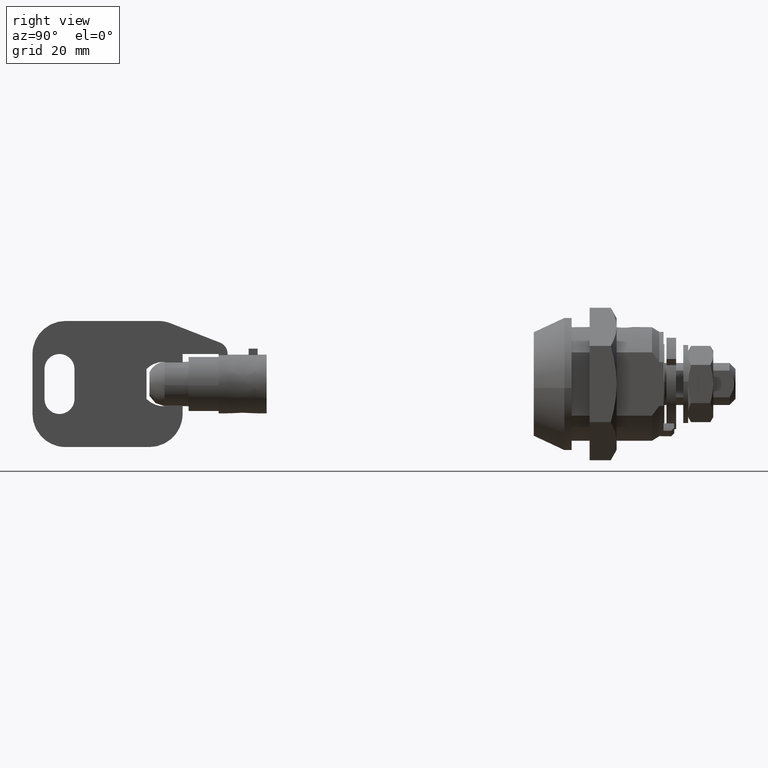
[diagram: clean part render]
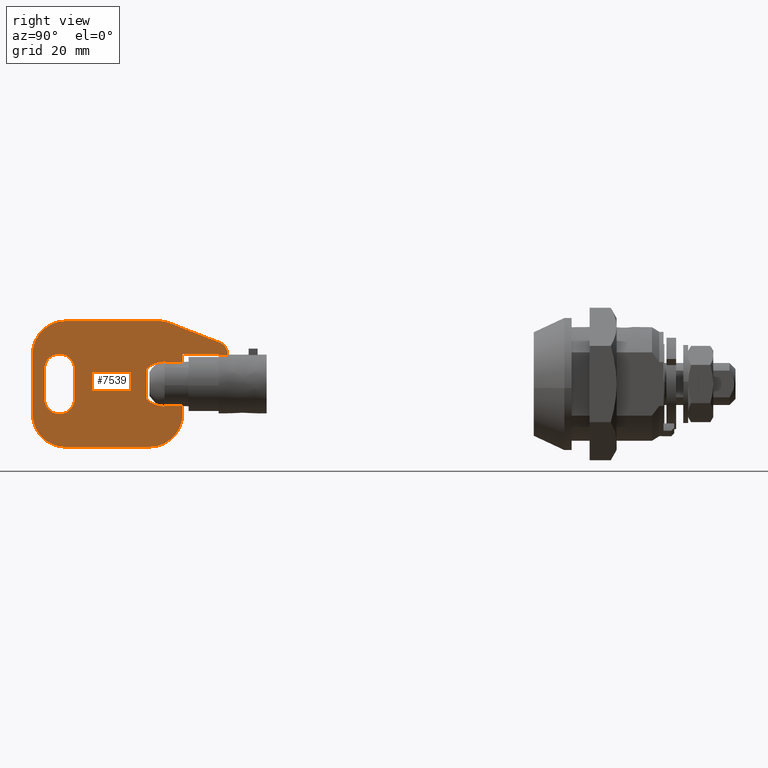
[diagram: same view with one face highlighted and labeled with its STEP entity id]
A machine part, right view. The second image highlights one B-rep face of the part: STEP entity #7539.
In plain terms, the highlighted face is a freeform B-spline surface patch.
Its self-contained STEP definition (entity closure, byte-faithful):
#5707=CARTESIAN_POINT('',(-61.487812432673103,-0.900000000000000,3.588871688985170));
#5708=VERTEX_POINT('',#5707);
#5783=CARTESIAN_POINT('',(-61.487812432673103,-0.900000000000000,-3.588871688985170));
#5784=VERTEX_POINT('',#5783);
#5798=CARTESIAN_POINT('',(-58.490193000000012,-0.900000000000000,-3.588871688985170));
#5799=VERTEX_POINT('',#5798);
#5800=CARTESIAN_POINT('',(-61.487812432673103,-0.900000000000000,-3.588871688985170));
#5801=CARTESIAN_POINT('',(-58.490193000000012,-0.900000000000000,-3.588871688985170));
#5802=QUASI_UNIFORM_CURVE('',1,(#5800,#5801),.UNSPECIFIED.,.F.,.U.);
#5803=EDGE_CURVE('',#5784,#5799,#5802,.T.);
#5866=CARTESIAN_POINT('',(-58.490193000000012,-0.900000000000000,3.588871688985170));
#5867=VERTEX_POINT('',#5866);
#5881=CARTESIAN_POINT('',(-58.490193000000012,-0.900000000000000,3.588871688985170));
#5882=CARTESIAN_POINT('',(-61.487812432673103,-0.900000000000000,3.588871688985170));
#5883=QUASI_UNIFORM_CURVE('',1,(#5881,#5882),.UNSPECIFIED.,.F.,.U.);
#5884=EDGE_CURVE('',#5867,#5708,#5883,.T.);
#6048=CARTESIAN_POINT('',(-50.990193000000012,-0.900000000000000,4.816637831516920));
#6049=VERTEX_POINT('',#6048);
#6063=CARTESIAN_POINT('',(-52.490192999999998,-0.900000000000000,4.816637831516920));
#6064=VERTEX_POINT('',#6063);
#6065=CARTESIAN_POINT('',(-50.990193000000012,-0.900000000000000,4.816637831516920));
#6066=CARTESIAN_POINT('',(-52.490192999999998,-0.900000000000000,4.816637831516920));
#6067=QUASI_UNIFORM_CURVE('',1,(#6065,#6066),.UNSPECIFIED.,.F.,.U.);
#6068=EDGE_CURVE('',#6049,#6064,#6067,.T.);
#6291=CARTESIAN_POINT('',(-61.490199608887401,-0.900000000000000,-3.588702282998970));
#6292=VERTEX_POINT('',#6291);
#6306=CARTESIAN_POINT('',(-61.490199608887423,-0.900000000000000,-3.588702282999030));
#6307=CARTESIAN_POINT('',(-61.489403980217247,-0.900000000000000,-3.588759073560181));
#6308=CARTESIAN_POINT('',(-61.488608254140843,-0.900000000000000,-3.588815540332797));
#6309=CARTESIAN_POINT('',(-61.487812432673103,-0.900000000000000,-3.588871688985170));
#6310=B_SPLINE_CURVE_WITH_KNOTS('',3,(#6306,#6307,#6308,#6309),.UNSPECIFIED.,.F.,.U.,(4,4),(0.0,0.000217530826525),.UNSPECIFIED.);
#6311=EDGE_CURVE('',#6292,#5784,#6310,.T.);
#6316=CARTESIAN_POINT('',(-61.490192999999891,-0.900000000000000,3.588702754722065));
#6317=VERTEX_POINT('',#6316);
#6318=CARTESIAN_POINT('',(-61.487812432673103,-0.900000000000000,3.588871688985170));
#6319=CARTESIAN_POINT('',(-61.488605935360383,-0.900000000000000,3.588815710378920));
#6320=CARTESIAN_POINT('',(-61.489399457490940,-0.900000000000000,3.588759394561064));
#6321=CARTESIAN_POINT('',(-61.490192999999891,-0.900000000000000,3.588702754722090));
#6322=B_SPLINE_CURVE_WITH_KNOTS('',3,(#6318,#6319,#6320,#6321),.UNSPECIFIED.,.F.,.U.,(4,4),(0.999783444907075,1.0),.UNSPECIFIED.);
#6323=EDGE_CURVE('',#5708,#6317,#6322,.T.);
#6575=CARTESIAN_POINT('',(-81.490193000000005,-0.900000000000012,-2.500000000000000));
#6576=VERTEX_POINT('',#6575);
#6577=CARTESIAN_POINT('',(-76.490193000000005,-0.900000000000012,-2.500000000000000));
#6578=VERTEX_POINT('',#6577);
#6579=CARTESIAN_POINT('',(-81.490193000000005,-0.900000000000012,-2.500000000000000));
#6580=CARTESIAN_POINT('',(-81.490193000000005,-0.900000000000012,-5.000000000000001));
#6581=CARTESIAN_POINT('',(-78.990193000000005,-0.900000000000012,-5.0));
#6582=CARTESIAN_POINT('',(-76.490192999999991,-0.900000000000012,-5.000000000000001));
#6583=CARTESIAN_POINT('',(-76.490193000000005,-0.900000000000012,-2.500000000000000));
#6591=(BOUNDED_CURVE()B_SPLINE_CURVE(2,(#6579,#6580,#6581,#6582,#6583),.UNSPECIFIED.,.F.,.U.)B_SPLINE_CURVE_WITH_KNOTS((3,2,3),(0.0,0.500000000000000,1.0),.UNSPECIFIED.)CURVE()GEOMETRIC_REPRESENTATION_ITEM()RATIONAL_B_SPLINE_CURVE((1.0,0.707106781186548,1.0,0.707106781186548,1.0))REPRESENTATION_ITEM(''));
#6592=EDGE_CURVE('',#6576,#6578,#6591,.T.);
#6631=CARTESIAN_POINT('',(-76.490193000000005,-0.900000000000012,2.500000000000000));
#6632=VERTEX_POINT('',#6631);
#6633=CARTESIAN_POINT('',(-76.490193000000005,-0.900000000000012,2.500000000000000));
#6634=CARTESIAN_POINT('',(-76.490193000000005,-0.900000000000012,-2.500000000000000));
#6635=QUASI_UNIFORM_CURVE('',1,(#6633,#6634),.UNSPECIFIED.,.F.,.U.);
#6636=EDGE_CURVE('',#6632,#6578,#6635,.T.);
#6672=CARTESIAN_POINT('',(-81.490193000000005,-0.900000000000012,2.500000000000000));
#6673=VERTEX_POINT('',#6672);
#6674=CARTESIAN_POINT('',(-76.490193000000005,-0.900000000000012,2.500000000000000));
#6675=CARTESIAN_POINT('',(-76.490192999999991,-0.900000000000012,5.000000000000001));
#6676=CARTESIAN_POINT('',(-78.990193000000005,-0.900000000000012,5.0));
#6677=CARTESIAN_POINT('',(-81.490193000000005,-0.900000000000012,5.000000000000001));
#6678=CARTESIAN_POINT('',(-81.490193000000005,-0.900000000000012,2.500000000000000));
#6686=(BOUNDED_CURVE()B_SPLINE_CURVE(2,(#6674,#6675,#6676,#6677,#6678),.UNSPECIFIED.,.F.,.U.)B_SPLINE_CURVE_WITH_KNOTS((3,2,3),(0.0,0.500000000000000,1.0),.UNSPECIFIED.)CURVE()GEOMETRIC_REPRESENTATION_ITEM()RATIONAL_B_SPLINE_CURVE((1.0,0.707106781186548,1.0,0.707106781186548,1.0))REPRESENTATION_ITEM(''));
#6687=EDGE_CURVE('',#6632,#6673,#6686,.T.);
#6720=CARTESIAN_POINT('',(-81.490193000000005,-0.900000000000012,-2.500000000000000));
#6721=CARTESIAN_POINT('',(-81.490193000000005,-0.900000000000012,2.500000000000000));
#6722=QUASI_UNIFORM_CURVE('',1,(#6720,#6721),.UNSPECIFIED.,.F.,.U.);
#6723=EDGE_CURVE('',#6576,#6673,#6722,.T.);
#6766=CARTESIAN_POINT('',(-62.526610622687897,-0.900000000000000,10.500000000000000));
#6767=VERTEX_POINT('',#6766);
#6773=CARTESIAN_POINT('',(-60.526312026143103,-0.900000000000000,10.123358812796660));
#6774=VERTEX_POINT('',#6773);
#6775=CARTESIAN_POINT('',(-60.526312026143110,-0.900000000000012,10.123358812796640));
#6776=CARTESIAN_POINT('',(-61.491001972461007,-0.900000000000012,10.500000000000000));
#6777=CARTESIAN_POINT('',(-62.526610622687897,-0.900000000000012,10.500000000000000));
#6785=(BOUNDED_CURVE()B_SPLINE_CURVE(2,(#6775,#6776,#6777),.UNSPECIFIED.,.F.,.U.)CURVE()GEOMETRIC_REPRESENTATION_ITEM()QUASI_UNIFORM_CURVE()RATIONAL_B_SPLINE_CURVE((1.0,0.982730833988851,1.0))REPRESENTATION_ITEM(''));
#6786=EDGE_CURVE('',#6774,#6767,#6785,.T.);
#6827=CARTESIAN_POINT('',(-52.262811692165499,-0.900000000000000,6.897063578639590));
#6828=VERTEX_POINT('',#6827);
#6834=CARTESIAN_POINT('',(-50.990193000000012,-0.900000000000000,5.034024010349899));
#6835=VERTEX_POINT('',#6834);
#6836=CARTESIAN_POINT('',(-50.990192999999998,-0.900000000000012,5.034024010349899));
#6837=CARTESIAN_POINT('',(-50.990192999999991,-0.900000000000012,6.400198635759287));
#6838=CARTESIAN_POINT('',(-52.262811692165513,-0.900000000000012,6.897063578639575));
#6846=(BOUNDED_CURVE()B_SPLINE_CURVE(2,(#6836,#6837,#6838),.UNSPECIFIED.,.F.,.U.)CURVE()GEOMETRIC_REPRESENTATION_ITEM()QUASI_UNIFORM_CURVE()RATIONAL_B_SPLINE_CURVE((1.0,0.825739260879985,1.0))REPRESENTATION_ITEM(''));
#6847=EDGE_CURVE('',#6835,#6828,#6846,.T.);
#6862=CARTESIAN_POINT('',(-58.490193000000012,-0.900000000000012,5.0));
#6863=VERTEX_POINT('',#6862);
#6864=CARTESIAN_POINT('',(-52.490192999999998,-0.900000000000012,5.0));
#6865=VERTEX_POINT('',#6864);
#6866=CARTESIAN_POINT('',(-58.490193000000012,-0.900000000000012,5.0));
#6867=CARTESIAN_POINT('',(-52.490192999999998,-0.900000000000012,5.0));
#6868=QUASI_UNIFORM_CURVE('',1,(#6866,#6867),.UNSPECIFIED.,.F.,.U.);
#6869=EDGE_CURVE('',#6863,#6865,#6868,.T.);
#6898=CARTESIAN_POINT('',(-64.490193000000005,-0.900000000000012,-2.500520151848770));
#6899=VERTEX_POINT('',#6898);
#6900=CARTESIAN_POINT('',(-64.490193000000005,-0.900000000000012,2.499520151848455));
#6901=VERTEX_POINT('',#6900);
#6902=CARTESIAN_POINT('',(-64.490193000000005,-0.900000000000012,-2.500520151848770));
#6903=CARTESIAN_POINT('',(-64.490193000000005,-0.900000000000012,2.499520151848455));
#6904=QUASI_UNIFORM_CURVE('',1,(#6902,#6903),.UNSPECIFIED.,.F.,.U.);
#6905=EDGE_CURVE('',#6899,#6901,#6904,.T.);
#6943=CARTESIAN_POINT('',(-61.490199608887401,-0.900000000000012,-3.700514335641915));
#6944=VERTEX_POINT('',#6943);
#6945=CARTESIAN_POINT('',(-64.490193000000005,-0.900000000000012,-2.500520151848772));
#6946=CARTESIAN_POINT('',(-63.255093754734816,-0.900000000000012,-3.762762620372036));
#6947=CARTESIAN_POINT('',(-61.490199608887401,-0.900000000000012,-3.700514335641909));
#6955=(BOUNDED_CURVE()B_SPLINE_CURVE(2,(#6945,#6946,#6947),.UNSPECIFIED.,.F.,.U.)CURVE()GEOMETRIC_REPRESENTATION_ITEM()QUASI_UNIFORM_CURVE()RATIONAL_B_SPLINE_CURVE((1.0,0.914809181026153,1.0))REPRESENTATION_ITEM(''));
#6956=EDGE_CURVE('',#6899,#6944,#6955,.T.);
#6996=CARTESIAN_POINT('',(-63.990192999999998,-0.900000000000012,-10.500000000000201));
#6997=VERTEX_POINT('',#6996);
#6998=CARTESIAN_POINT('',(-58.490193000000012,-0.900000000000012,-5.0));
#6999=VERTEX_POINT('',#6998);
#7000=CARTESIAN_POINT('',(-63.990192999999998,-0.900000000000012,-10.500000000000000));
#7001=CARTESIAN_POINT('',(-58.490193000000005,-0.900000000000012,-10.499999999999998));
#7002=CARTESIAN_POINT('',(-58.490193000000012,-0.900000000000012,-5.0));
#7010=(BOUNDED_CURVE()B_SPLINE_CURVE(2,(#7000,#7001,#7002),.UNSPECIFIED.,.F.,.U.)CURVE()GEOMETRIC_REPRESENTATION_ITEM()QUASI_UNIFORM_CURVE()RATIONAL_B_SPLINE_CURVE((1.0,0.707106781186548,1.0))REPRESENTATION_ITEM(''));
#7011=EDGE_CURVE('',#6997,#6999,#7010,.T.);
#7048=CARTESIAN_POINT('',(-77.990193000000005,-0.900000000000012,-10.500000000000000));
#7049=VERTEX_POINT('',#7048);
#7050=CARTESIAN_POINT('',(-77.990193000000005,-0.900000000000012,-10.500000000000000));
#7051=CARTESIAN_POINT('',(-63.990192999999998,-0.900000000000012,-10.500000000000201));
#7052=QUASI_UNIFORM_CURVE('',1,(#7050,#7051),.UNSPECIFIED.,.F.,.U.);
#7053=EDGE_CURVE('',#7049,#6997,#7052,.T.);
#7085=CARTESIAN_POINT('',(-83.490193000000005,-0.900000000000012,-5.0));
#7086=VERTEX_POINT('',#7085);
#7087=CARTESIAN_POINT('',(-83.490193000000005,-0.900000000000012,-5.0));
#7088=CARTESIAN_POINT('',(-83.490193000000005,-0.900000000000012,-10.499999999999998));
#7089=CARTESIAN_POINT('',(-77.990193000000005,-0.900000000000012,-10.500000000000000));
#7097=(BOUNDED_CURVE()B_SPLINE_CURVE(2,(#7087,#7088,#7089),.UNSPECIFIED.,.F.,.U.)CURVE()GEOMETRIC_REPRESENTATION_ITEM()QUASI_UNIFORM_CURVE()RATIONAL_B_SPLINE_CURVE((1.0,0.707106781186548,1.0))REPRESENTATION_ITEM(''));
#7098=EDGE_CURVE('',#7086,#7049,#7097,.T.);
#7129=CARTESIAN_POINT('',(-83.490193000000005,-0.900000000000012,5.0));
#7130=VERTEX_POINT('',#7129);
#7131=CARTESIAN_POINT('',(-83.490193000000005,-0.900000000000012,5.0));
#7132=CARTESIAN_POINT('',(-83.490193000000005,-0.900000000000012,-5.0));
#7133=QUASI_UNIFORM_CURVE('',1,(#7131,#7132),.UNSPECIFIED.,.F.,.U.);
#7134=EDGE_CURVE('',#7130,#7086,#7133,.T.);
#7166=CARTESIAN_POINT('',(-77.990193000000005,-0.900000000000012,10.500000000000000));
#7167=VERTEX_POINT('',#7166);
#7168=CARTESIAN_POINT('',(-77.990193000000005,-0.900000000000012,10.500000000000000));
#7169=CARTESIAN_POINT('',(-83.490193000000005,-0.900000000000012,10.499999999999998));
#7170=CARTESIAN_POINT('',(-83.490193000000005,-0.900000000000012,5.0));
#7178=(BOUNDED_CURVE()B_SPLINE_CURVE(2,(#7168,#7169,#7170),.UNSPECIFIED.,.F.,.U.)CURVE()GEOMETRIC_REPRESENTATION_ITEM()QUASI_UNIFORM_CURVE()RATIONAL_B_SPLINE_CURVE((1.0,0.707106781186548,1.0))REPRESENTATION_ITEM(''));
#7179=EDGE_CURVE('',#7167,#7130,#7178,.T.);
#7210=CARTESIAN_POINT('',(-62.526610622687897,-0.900000000000000,10.500000000000000));
#7211=CARTESIAN_POINT('',(-77.990193000000005,-0.900000000000012,10.500000000000000));
#7212=QUASI_UNIFORM_CURVE('',1,(#7210,#7211),.UNSPECIFIED.,.F.,.U.);
#7213=EDGE_CURVE('',#6767,#7167,#7212,.T.);
#7236=CARTESIAN_POINT('',(-52.262811692165499,-0.900000000000000,6.897063578639590));
#7237=CARTESIAN_POINT('',(-60.526312026143103,-0.900000000000000,10.123358812796660));
#7238=QUASI_UNIFORM_CURVE('',1,(#7236,#7237),.UNSPECIFIED.,.F.,.U.);
#7239=EDGE_CURVE('',#6828,#6774,#7238,.T.);
#7251=CARTESIAN_POINT('',(-61.490192999999998,-0.900000000000012,3.699514102538915));
#7252=VERTEX_POINT('',#7251);
#7253=CARTESIAN_POINT('',(-61.490192999999998,-0.900000000000012,3.699514102538915));
#7254=CARTESIAN_POINT('',(-61.490192999999891,-0.900000000000000,3.588702754722065));
#7255=QUASI_UNIFORM_CURVE('',1,(#7253,#7254),.UNSPECIFIED.,.F.,.U.);
#7256=EDGE_CURVE('',#7252,#6317,#7255,.T.);
#7305=CARTESIAN_POINT('',(-61.490192999999998,-0.900000000000012,3.699514102538912));
#7306=CARTESIAN_POINT('',(-63.255090991481552,-0.900000000000012,3.761765444351775));
#7307=CARTESIAN_POINT('',(-64.490193000000005,-0.900000000000012,2.499520151848459));
#7315=(BOUNDED_CURVE()B_SPLINE_CURVE(2,(#7305,#7306,#7307),.UNSPECIFIED.,.F.,.U.)CURVE()GEOMETRIC_REPRESENTATION_ITEM()QUASI_UNIFORM_CURVE()RATIONAL_B_SPLINE_CURVE((1.0,0.914808847163458,1.0))REPRESENTATION_ITEM(''));
#7316=EDGE_CURVE('',#7252,#6901,#7315,.T.);
#7347=CARTESIAN_POINT('',(-61.490199608887401,-0.900000000000000,-3.588702282998970));
#7348=CARTESIAN_POINT('',(-61.490199608887401,-0.900000000000012,-3.700514335641915));
#7349=QUASI_UNIFORM_CURVE('',1,(#7347,#7348),.UNSPECIFIED.,.F.,.U.);
#7350=EDGE_CURVE('',#6292,#6944,#7349,.T.);
#7367=CARTESIAN_POINT('',(-58.490193000000012,-0.900000000000000,3.588871688985170));
#7368=CARTESIAN_POINT('',(-58.490193000000012,-0.900000000000012,5.0));
#7369=QUASI_UNIFORM_CURVE('',1,(#7367,#7368),.UNSPECIFIED.,.F.,.U.);
#7370=EDGE_CURVE('',#5867,#6863,#7369,.T.);
#7381=CARTESIAN_POINT('',(-58.490193000000012,-0.900000000000012,-5.0));
#7382=CARTESIAN_POINT('',(-58.490193000000012,-0.900000000000000,-3.588871688985170));
#7383=QUASI_UNIFORM_CURVE('',1,(#7381,#7382),.UNSPECIFIED.,.F.,.U.);
#7384=EDGE_CURVE('',#6999,#5799,#7383,.T.);
#7406=CARTESIAN_POINT('',(-50.990193000000012,-0.900000000000000,4.816637831516920));
#7407=CARTESIAN_POINT('',(-50.990193000000012,-0.900000000000000,5.034024010349899));
#7408=QUASI_UNIFORM_CURVE('',1,(#7406,#7407),.UNSPECIFIED.,.F.,.U.);
#7409=EDGE_CURVE('',#6049,#6835,#7408,.T.);
#7464=CARTESIAN_POINT('',(-52.490192999999998,-0.900000000000012,5.0));
#7465=CARTESIAN_POINT('',(-52.490192999999998,-0.900000000000000,4.816637831516920));
#7466=QUASI_UNIFORM_CURVE('',1,(#7464,#7465),.UNSPECIFIED.,.F.,.U.);
#7467=EDGE_CURVE('',#6865,#6064,#7466,.T.);
#7502=CARTESIAN_POINT('',(-85.113571292962916,-0.900000000000000,-11.548949959298140));
#7503=CARTESIAN_POINT('',(-49.366817031618240,-0.900000000000000,-11.548949959298140));
#7504=CARTESIAN_POINT('',(-85.113571292962916,-0.900000000000000,11.548950522561830));
#7505=CARTESIAN_POINT('',(-49.366817031618240,-0.900000000000000,11.548950522561830));
#7506=B_SPLINE_SURFACE_WITH_KNOTS('',1,1,((#7502,#7504),(#7503,#7505)),.UNSPECIFIED.,.F.,.F.,.U.,(2,2),(2,2),(0.0,35.746754261344677),(0.0,23.097900481859970),.UNSPECIFIED.);
#7507=ORIENTED_EDGE('',*,*,#7239,.T.);
#7508=ORIENTED_EDGE('',*,*,#6786,.T.);
#7509=ORIENTED_EDGE('',*,*,#7213,.T.);
#7510=ORIENTED_EDGE('',*,*,#7179,.T.);
#7511=ORIENTED_EDGE('',*,*,#7134,.T.);
#7512=ORIENTED_EDGE('',*,*,#7098,.T.);
#7513=ORIENTED_EDGE('',*,*,#7053,.T.);
#7514=ORIENTED_EDGE('',*,*,#7011,.T.);
#7515=ORIENTED_EDGE('',*,*,#7384,.T.);
#7516=ORIENTED_EDGE('',*,*,#5803,.F.);
#7517=ORIENTED_EDGE('',*,*,#6311,.F.);
#7518=ORIENTED_EDGE('',*,*,#7350,.T.);
#7519=ORIENTED_EDGE('',*,*,#6956,.F.);
#7520=ORIENTED_EDGE('',*,*,#6905,.T.);
#7521=ORIENTED_EDGE('',*,*,#7316,.F.);
#7522=ORIENTED_EDGE('',*,*,#7256,.T.);
#7523=ORIENTED_EDGE('',*,*,#6323,.F.);
#7524=ORIENTED_EDGE('',*,*,#5884,.F.);
#7525=ORIENTED_EDGE('',*,*,#7370,.T.);
#7526=ORIENTED_EDGE('',*,*,#6869,.T.);
#7527=ORIENTED_EDGE('',*,*,#7467,.T.);
#7528=ORIENTED_EDGE('',*,*,#6068,.F.);
#7529=ORIENTED_EDGE('',*,*,#7409,.T.);
#7530=ORIENTED_EDGE('',*,*,#6847,.T.);
#7531=EDGE_LOOP('',(#7507,#7508,#7509,#7510,#7511,#7512,#7513,#7514,#7515,#7516,#7517,#7518,#7519,#7520,#7521,#7522,#7523,#7524,#7525,#7526,#7527,#7528,#7529,#7530));
#7532=FACE_OUTER_BOUND('',#7531,.T.);
#7533=ORIENTED_EDGE('',*,*,#6592,.F.);
#7534=ORIENTED_EDGE('',*,*,#6723,.T.);
#7535=ORIENTED_EDGE('',*,*,#6687,.F.);
#7536=ORIENTED_EDGE('',*,*,#6636,.T.);
#7537=EDGE_LOOP('',(#7533,#7534,#7535,#7536));
#7538=FACE_BOUND('',#7537,.T.);
#7539=ADVANCED_FACE('',(#7532,#7538),#7506,.T.);